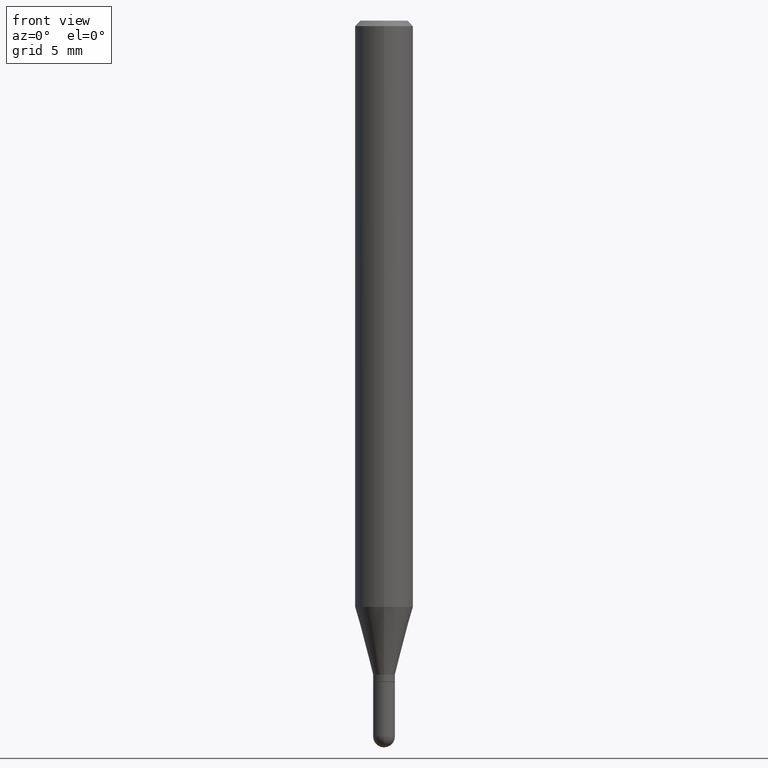
[diagram: clean part render]
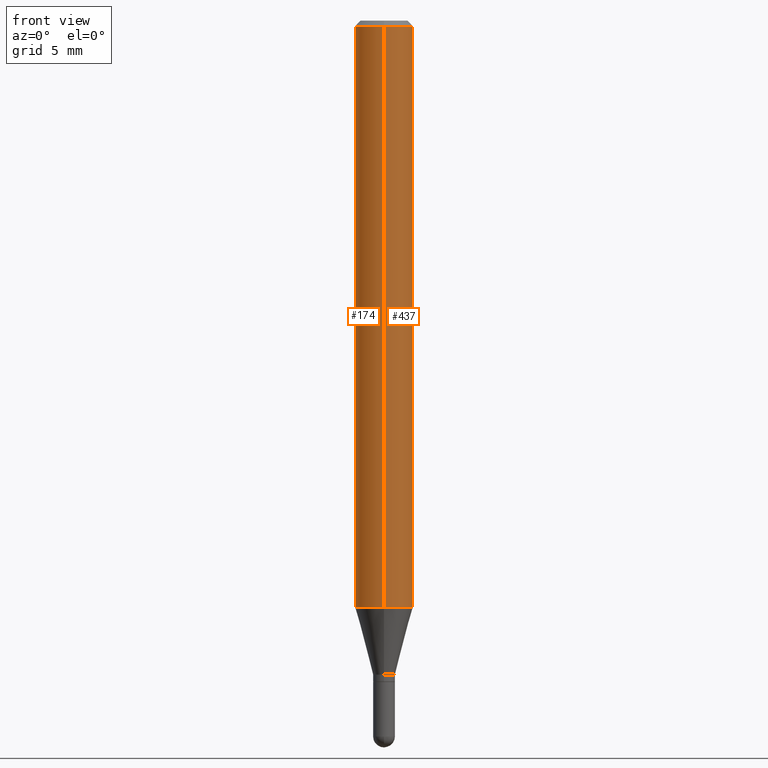
[diagram: same view with one multi-face feature highlighted, each face labeled with its STEP entity id]
A machine part, front view. The highlighted faces form ONE feature: a constant-radius fillet chain: 2 tangent blend faces with common blend radius 2.0002 mm. The faces share edges in the B-rep.
Their STEP definitions:
[1] entity #174 (Cylinder):
#3 = FACE_OUTER_BOUND ( 'NONE', #511, .T. ) ;
#16 = ORIENTED_EDGE ( 'NONE', *, *, #451, .F. ) ;
#30 = LINE ( 'NONE', #33, #398 ) ;
#33 = CARTESIAN_POINT ( 'NONE',  ( 5.595524044110787031E-16, 0.07875000000000000056, -2.749547624350058893E-16 ) ) ;
#103 = ORIENTED_EDGE ( 'NONE', *, *, #494, .F. ) ;
#116 = CARTESIAN_POINT ( 'NONE',  ( 0.000000000000000000, 0.000000000000000000, 0.000000000000000000 ) ) ;
#118 = VERTEX_POINT ( 'NONE', #162 ) ;
#119 = LINE ( 'NONE', #167, #396 ) ;
#142 = CARTESIAN_POINT ( 'NONE',  ( -5.499083108677547901E-16, -0.07875000000000556555, -1.587883100267612591 ) ) ;
#161 = VERTEX_POINT ( 'NONE', #267 ) ;
#162 = CARTESIAN_POINT ( 'NONE',  ( 5.595524044111173573E-16, 0.07874999999999443556, -1.587883100267613035 ) ) ;
#167 = CARTESIAN_POINT ( 'NONE',  ( -5.499083108677933457E-16, -0.07875000000000000056, 2.749547624350058893E-16 ) ) ;
#174 = ADVANCED_FACE ( 'NONE', ( #3 ), #309, .T. ) ;
#193 = EDGE_CURVE ( 'NONE', #507, #161, #119, .T. ) ;
#197 = ORIENTED_EDGE ( 'NONE', *, *, #285, .T. ) ;
#198 = CIRCLE ( 'NONE', #473, 0.07875000000000000056 ) ;
#260 = DIRECTION ( 'NONE',  ( -2.445463423752014680E-29, 3.491489046793725372E-15, 1.000000000000000000 ) ) ;
#267 = CARTESIAN_POINT ( 'NONE',  ( -5.499083108677930499E-16, -0.07875000000000004219, -0.01499999999999948944 ) ) ;
#274 = DIRECTION ( 'NONE',  ( -6.982962677686264344E-15, -1.000000000000000000, 3.491489046793725372E-15 ) ) ;
#284 = DIRECTION ( 'NONE',  ( -2.445463423752014680E-29, 3.491489046793725372E-15, 1.000000000000000000 ) ) ;
#285 = EDGE_CURVE ( 'NONE', #118, #507, #472, .T. ) ;
#286 = CARTESIAN_POINT ( 'NONE',  ( 3.668195135627964654E-31, -5.237233570190505697E-17, -0.01499999999999976526 ) ) ;
#309 = CYLINDRICAL_SURFACE ( 'NONE', #322, 0.07875000000000000056 ) ;
#322 = AXIS2_PLACEMENT_3D ( 'NONE', #116, #390, #274 ) ;
#339 = CARTESIAN_POINT ( 'NONE',  ( 3.883110042898400634E-29, -5.544076452173231922E-15, -1.587883100267612813 ) ) ;
#341 = DIRECTION ( 'NONE',  ( -2.445463423752014680E-29, 3.491489046793725372E-15, 1.000000000000000000 ) ) ;
#346 = DIRECTION ( 'NONE',  ( -6.982962677686264344E-15, -1.000000000000000000, 3.469013325287953293E-15 ) ) ;
#354 = AXIS2_PLACEMENT_3D ( 'NONE', #339, #260, #346 ) ;
#357 = CARTESIAN_POINT ( 'NONE',  ( 5.595524044111179489E-16, 0.07874999999999994504, -0.01500000000000004108 ) ) ;
#381 = DIRECTION ( 'NONE',  ( -2.445463423752014680E-29, 3.491489046793725372E-15, 1.000000000000000000 ) ) ;
#390 = DIRECTION ( 'NONE',  ( -2.445463423752014680E-29, 3.491489046793725372E-15, 1.000000000000000000 ) ) ;
#395 = VERTEX_POINT ( 'NONE', #357 ) ;
#396 = VECTOR ( 'NONE', #284, 39.37007874015748143 ) ;
#398 = VECTOR ( 'NONE', #341, 39.37007874015748143 ) ;
#434 = ORIENTED_EDGE ( 'NONE', *, *, #193, .T. ) ;
#451 = EDGE_CURVE ( 'NONE', #118, #395, #30, .T. ) ;
#472 = CIRCLE ( 'NONE', #354, 0.07875000000000000056 ) ;
#473 = AXIS2_PLACEMENT_3D ( 'NONE', #286, #381, #505 ) ;
#494 = EDGE_CURVE ( 'NONE', #395, #161, #198, .T. ) ;
#505 = DIRECTION ( 'NONE',  ( -6.982962677686264344E-15, -1.000000000000000000, 3.496114991891765576E-15 ) ) ;
#507 = VERTEX_POINT ( 'NONE', #142 ) ;
#511 = EDGE_LOOP ( 'NONE', ( #16, #197, #434, #103 ) ) ;
[2] entity #437 (Cylinder):
#30 = LINE ( 'NONE', #33, #398 ) ;
#32 = CIRCLE ( 'NONE', #426, 0.07875000000000000056 ) ;
#33 = CARTESIAN_POINT ( 'NONE',  ( 5.595524044110787031E-16, 0.07875000000000000056, -2.749547624350058893E-16 ) ) ;
#44 = ORIENTED_EDGE ( 'NONE', *, *, #307, .T. ) ;
#49 = EDGE_CURVE ( 'NONE', #161, #395, #254, .T. ) ;
#56 = CARTESIAN_POINT ( 'NONE',  ( 0.000000000000000000, 0.000000000000000000, 0.000000000000000000 ) ) ;
#74 = AXIS2_PLACEMENT_3D ( 'NONE', #383, #386, #425 ) ;
#89 = ORIENTED_EDGE ( 'NONE', *, *, #451, .T. ) ;
#118 = VERTEX_POINT ( 'NONE', #162 ) ;
#119 = LINE ( 'NONE', #167, #396 ) ;
#142 = CARTESIAN_POINT ( 'NONE',  ( -5.499083108677547901E-16, -0.07875000000000556555, -1.587883100267612591 ) ) ;
#161 = VERTEX_POINT ( 'NONE', #267 ) ;
#162 = CARTESIAN_POINT ( 'NONE',  ( 5.595524044111173573E-16, 0.07874999999999443556, -1.587883100267613035 ) ) ;
#167 = CARTESIAN_POINT ( 'NONE',  ( -5.499083108677933457E-16, -0.07875000000000000056, 2.749547624350058893E-16 ) ) ;
#171 = FACE_OUTER_BOUND ( 'NONE', #189, .T. ) ;
#189 = EDGE_LOOP ( 'NONE', ( #44, #89, #236, #376 ) ) ;
#193 = EDGE_CURVE ( 'NONE', #507, #161, #119, .T. ) ;
#196 = AXIS2_PLACEMENT_3D ( 'NONE', #56, #203, #488 ) ;
#202 = CARTESIAN_POINT ( 'NONE',  ( 3.883110042898400634E-29, -5.544076452173231922E-15, -1.587883100267612813 ) ) ;
#203 = DIRECTION ( 'NONE',  ( -2.445463423752014680E-29, 3.491489046793725372E-15, 1.000000000000000000 ) ) ;
#236 = ORIENTED_EDGE ( 'NONE', *, *, #49, .F. ) ;
#241 = DIRECTION ( 'NONE',  ( -2.445463423752014680E-29, 3.491489046793725372E-15, 1.000000000000000000 ) ) ;
#245 = DIRECTION ( 'NONE',  ( -6.982962677686264344E-15, -1.000000000000000000, 3.469013325287953293E-15 ) ) ;
#254 = CIRCLE ( 'NONE', #74, 0.07875000000000000056 ) ;
#267 = CARTESIAN_POINT ( 'NONE',  ( -5.499083108677930499E-16, -0.07875000000000004219, -0.01499999999999948944 ) ) ;
#284 = DIRECTION ( 'NONE',  ( -2.445463423752014680E-29, 3.491489046793725372E-15, 1.000000000000000000 ) ) ;
#307 = EDGE_CURVE ( 'NONE', #507, #118, #32, .T. ) ;
#341 = DIRECTION ( 'NONE',  ( -2.445463423752014680E-29, 3.491489046793725372E-15, 1.000000000000000000 ) ) ;
#357 = CARTESIAN_POINT ( 'NONE',  ( 5.595524044111179489E-16, 0.07874999999999994504, -0.01500000000000004108 ) ) ;
#376 = ORIENTED_EDGE ( 'NONE', *, *, #193, .F. ) ;
#383 = CARTESIAN_POINT ( 'NONE',  ( 3.668195135627964654E-31, -5.237233570190505697E-17, -0.01499999999999976526 ) ) ;
#386 = DIRECTION ( 'NONE',  ( -2.445463423752014680E-29, 3.491489046793725372E-15, 1.000000000000000000 ) ) ;
#395 = VERTEX_POINT ( 'NONE', #357 ) ;
#396 = VECTOR ( 'NONE', #284, 39.37007874015748143 ) ;
#398 = VECTOR ( 'NONE', #341, 39.37007874015748143 ) ;
#403 = CYLINDRICAL_SURFACE ( 'NONE', #196, 0.07875000000000000056 ) ;
#425 = DIRECTION ( 'NONE',  ( -6.982962677686264344E-15, -1.000000000000000000, 3.496114991891765576E-15 ) ) ;
#426 = AXIS2_PLACEMENT_3D ( 'NONE', #202, #241, #245 ) ;
#437 = ADVANCED_FACE ( 'NONE', ( #171 ), #403, .T. ) ;
#451 = EDGE_CURVE ( 'NONE', #118, #395, #30, .T. ) ;
#488 = DIRECTION ( 'NONE',  ( -6.982962677686264344E-15, -1.000000000000000000, 3.491489046793725372E-15 ) ) ;
#507 = VERTEX_POINT ( 'NONE', #142 ) ;